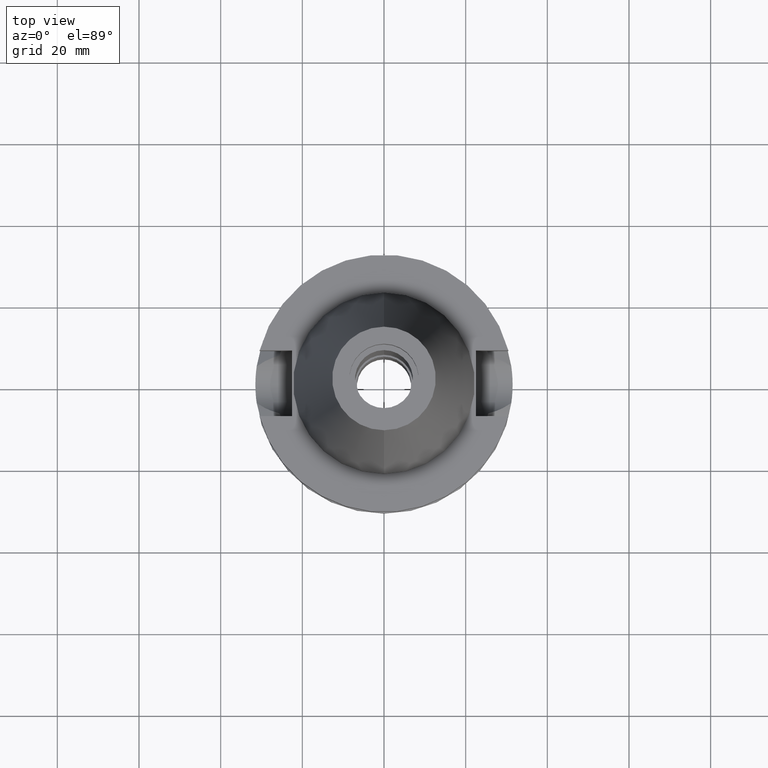
[diagram: clean part render]
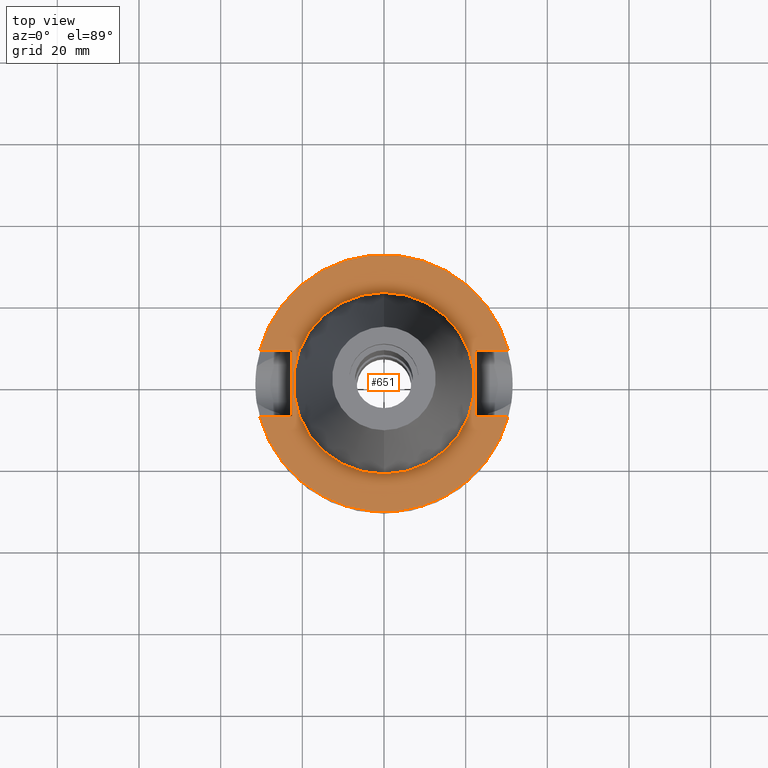
[diagram: same view with one face highlighted and labeled with its STEP entity id]
A machine part, top view. The second image highlights one B-rep face of the part: STEP entity #651.
In plain terms, the highlighted planar face has unit normal (0, 0, -1).
Its self-contained STEP definition (entity closure, byte-faithful):
#80 = VECTOR ( 'NONE', #1832, 1000.000000000000000 ) ;
#87 = EDGE_CURVE ( 'NONE', #1116, #2610, #1815, .T. ) ;
#176 = CARTESIAN_POINT ( 'NONE',  ( 30.45402272279000044, -8.050000000000000711, -2.000000000000000000 ) ) ;
#185 = CARTESIAN_POINT ( 'NONE',  ( -22.50000000000000000, -8.050000000000000711, -2.000000000000000000 ) ) ;
#186 = ORIENTED_EDGE ( 'NONE', *, *, #1789, .F. ) ;
#292 = VECTOR ( 'NONE', #2262, 1000.000000000000000 ) ;
#310 = CARTESIAN_POINT ( 'NONE',  ( 30.45402272279000044, 8.050000000000000711, -2.000000000000000000 ) ) ;
#427 = CIRCLE ( 'NONE', #2665, 22.22500000000000142 ) ;
#434 = LINE ( 'NONE', #185, #2487 ) ;
#449 = CARTESIAN_POINT ( 'NONE',  ( 0.0000000000000000000, 2.115822274886999895E-14, -2.000000000000000000 ) ) ;
#464 = CARTESIAN_POINT ( 'NONE',  ( 0.0000000000000000000, 22.22500000000000142, -2.000000000000000000 ) ) ;
#490 = DIRECTION ( 'NONE',  ( 0.0000000000000000000, 1.000000000000000000, 0.0000000000000000000 ) ) ;
#543 = CARTESIAN_POINT ( 'NONE',  ( 22.50000000000000000, 8.050000000000000711, -2.000000000000000000 ) ) ;
#560 = EDGE_CURVE ( 'NONE', #3553, #1116, #434, .T. ) ;
#570 = DIRECTION ( 'NONE',  ( 1.000000000000000000, 3.573249715389999860E-14, 0.0000000000000000000 ) ) ;
#577 = LINE ( 'NONE', #1697, #789 ) ;
#584 = LINE ( 'NONE', #1104, #2413 ) ;
#588 = VERTEX_POINT ( 'NONE', #2760 ) ;
#651 = ADVANCED_FACE ( 'NONE', ( #3234, #1244 ), #1880, .F. ) ;
#674 = ORIENTED_EDGE ( 'NONE', *, *, #560, .F. ) ;
#715 = EDGE_LOOP ( 'NONE', ( #3295, #186 ) ) ;
#722 = DIRECTION ( 'NONE',  ( 0.0000000000000000000, -1.000000000000000000, 0.0000000000000000000 ) ) ;
#732 = AXIS2_PLACEMENT_3D ( 'NONE', #1302, #1020, #722 ) ;
#735 = AXIS2_PLACEMENT_3D ( 'NONE', #2286, #2241, #2009 ) ;
#774 = EDGE_CURVE ( 'NONE', #2453, #3651, #1088, .T. ) ;
#787 = CARTESIAN_POINT ( 'NONE',  ( 0.0000000000000000000, 2.115822274886999895E-14, -2.000000000000000000 ) ) ;
#789 = VECTOR ( 'NONE', #3381, 1000.000000000000000 ) ;
#843 = LINE ( 'NONE', #1085, #292 ) ;
#924 = EDGE_CURVE ( 'NONE', #588, #2453, #584, .T. ) ;
#1020 = DIRECTION ( 'NONE',  ( 0.0000000000000000000, 0.0000000000000000000, -1.000000000000000000 ) ) ;
#1085 = CARTESIAN_POINT ( 'NONE',  ( 22.50000000000000000, 8.050000000000000711, -2.000000000000000000 ) ) ;
#1088 = CIRCLE ( 'NONE', #732, 31.50000000000000000 ) ;
#1104 = CARTESIAN_POINT ( 'NONE',  ( 22.50000000000000000, -8.050000000000000711, -2.000000000000000000 ) ) ;
#1116 = VERTEX_POINT ( 'NONE', #1187 ) ;
#1187 = CARTESIAN_POINT ( 'NONE',  ( -22.50000000000000000, 8.050000000000000711, -2.000000000000000000 ) ) ;
#1203 = EDGE_CURVE ( 'NONE', #2610, #2612, #2824, .T. ) ;
#1233 = AXIS2_PLACEMENT_3D ( 'NONE', #3559, #3537, #2988 ) ;
#1244 = FACE_BOUND ( 'NONE', #715, .T. ) ;
#1302 = CARTESIAN_POINT ( 'NONE',  ( 0.0000000000000000000, 2.115822274886999895E-14, -2.000000000000000000 ) ) ;
#1512 = AXIS2_PLACEMENT_3D ( 'NONE', #787, #2731, #3584 ) ;
#1590 = EDGE_CURVE ( 'NONE', #3553, #3651, #2384, .T. ) ;
#1608 = ORIENTED_EDGE ( 'NONE', *, *, #3569, .F. ) ;
#1697 = CARTESIAN_POINT ( 'NONE',  ( 22.50000000000000000, 8.050000000000000711, -2.000000000000000000 ) ) ;
#1789 = EDGE_CURVE ( 'NONE', #3477, #2476, #427, .T. ) ;
#1815 = LINE ( 'NONE', #2937, #80 ) ;
#1832 = DIRECTION ( 'NONE',  ( -1.000000000000000000, -3.550916904668000126E-14, 0.0000000000000000000 ) ) ;
#1845 = CARTESIAN_POINT ( 'NONE',  ( 0.0000000000000000000, -22.22500000000000142, -2.000000000000000000 ) ) ;
#1880 = PLANE ( 'NONE',  #1233 ) ;
#1947 = CARTESIAN_POINT ( 'NONE',  ( -30.45402272279000044, -8.050000000000000711, -2.000000000000000000 ) ) ;
#1967 = ORIENTED_EDGE ( 'NONE', *, *, #774, .F. ) ;
#2009 = DIRECTION ( 'NONE',  ( 0.0000000000000000000, 1.000000000000000000, 0.0000000000000000000 ) ) ;
#2106 = ORIENTED_EDGE ( 'NONE', *, *, #924, .F. ) ;
#2164 = EDGE_LOOP ( 'NONE', ( #3492, #1967, #2106, #1608, #2340, #2471, #2333, #674 ) ) ;
#2241 = DIRECTION ( 'NONE',  ( 0.0000000000000000000, 0.0000000000000000000, 1.000000000000000000 ) ) ;
#2262 = DIRECTION ( 'NONE',  ( 0.0000000000000000000, -1.000000000000000000, 0.0000000000000000000 ) ) ;
#2286 = CARTESIAN_POINT ( 'NONE',  ( 0.0000000000000000000, 2.115822274886999895E-14, -2.000000000000000000 ) ) ;
#2333 = ORIENTED_EDGE ( 'NONE', *, *, #87, .F. ) ;
#2334 = DIRECTION ( 'NONE',  ( 0.0000000000000000000, 0.0000000000000000000, 1.000000000000000000 ) ) ;
#2340 = ORIENTED_EDGE ( 'NONE', *, *, #2991, .T. ) ;
#2384 = LINE ( 'NONE', #3503, #3162 ) ;
#2413 = VECTOR ( 'NONE', #570, 1000.000000000000000 ) ;
#2453 = VERTEX_POINT ( 'NONE', #176 ) ;
#2471 = ORIENTED_EDGE ( 'NONE', *, *, #1203, .F. ) ;
#2476 = VERTEX_POINT ( 'NONE', #464 ) ;
#2487 = VECTOR ( 'NONE', #490, 1000.000000000000000 ) ;
#2556 = CARTESIAN_POINT ( 'NONE',  ( -22.50000000000000000, -8.050000000000000711, -2.000000000000000000 ) ) ;
#2573 = EDGE_CURVE ( 'NONE', #2476, #3477, #2987, .T. ) ;
#2610 = VERTEX_POINT ( 'NONE', #2856 ) ;
#2612 = VERTEX_POINT ( 'NONE', #310 ) ;
#2665 = AXIS2_PLACEMENT_3D ( 'NONE', #449, #2334, #3189 ) ;
#2731 = DIRECTION ( 'NONE',  ( 0.0000000000000000000, 0.0000000000000000000, -1.000000000000000000 ) ) ;
#2760 = CARTESIAN_POINT ( 'NONE',  ( 22.50000000000000000, -8.050000000000000711, -2.000000000000000000 ) ) ;
#2824 = CIRCLE ( 'NONE', #1512, 31.50000000000000000 ) ;
#2856 = CARTESIAN_POINT ( 'NONE',  ( -30.45402272279000044, 8.050000000000000711, -2.000000000000000000 ) ) ;
#2937 = CARTESIAN_POINT ( 'NONE',  ( -22.50000000000000000, 8.050000000000000711, -2.000000000000000000 ) ) ;
#2987 = CIRCLE ( 'NONE', #735, 22.22500000000000142 ) ;
#2988 = DIRECTION ( 'NONE',  ( 0.0000000000000000000, -1.000000000000000000, 0.0000000000000000000 ) ) ;
#2991 = EDGE_CURVE ( 'NONE', #3063, #2612, #577, .T. ) ;
#3063 = VERTEX_POINT ( 'NONE', #543 ) ;
#3162 = VECTOR ( 'NONE', #3215, 1000.000000000000000 ) ;
#3189 = DIRECTION ( 'NONE',  ( 0.0000000000000000000, -1.000000000000000000, 0.0000000000000000000 ) ) ;
#3215 = DIRECTION ( 'NONE',  ( -1.000000000000000000, 3.550916904668000126E-14, 0.0000000000000000000 ) ) ;
#3234 = FACE_OUTER_BOUND ( 'NONE', #2164, .T. ) ;
#3295 = ORIENTED_EDGE ( 'NONE', *, *, #2573, .F. ) ;
#3381 = DIRECTION ( 'NONE',  ( 1.000000000000000000, -3.506251283225999947E-14, 0.0000000000000000000 ) ) ;
#3477 = VERTEX_POINT ( 'NONE', #1845 ) ;
#3492 = ORIENTED_EDGE ( 'NONE', *, *, #1590, .T. ) ;
#3503 = CARTESIAN_POINT ( 'NONE',  ( -22.50000000000000000, -8.050000000000000711, -2.000000000000000000 ) ) ;
#3537 = DIRECTION ( 'NONE',  ( 0.0000000000000000000, 0.0000000000000000000, -1.000000000000000000 ) ) ;
#3553 = VERTEX_POINT ( 'NONE', #2556 ) ;
#3559 = CARTESIAN_POINT ( 'NONE',  ( 0.0000000000000000000, 1.200153863163999924E-14, -2.000000000000000000 ) ) ;
#3569 = EDGE_CURVE ( 'NONE', #3063, #588, #843, .T. ) ;
#3584 = DIRECTION ( 'NONE',  ( 0.0000000000000000000, 1.000000000000000000, 0.0000000000000000000 ) ) ;
#3651 = VERTEX_POINT ( 'NONE', #1947 ) ;